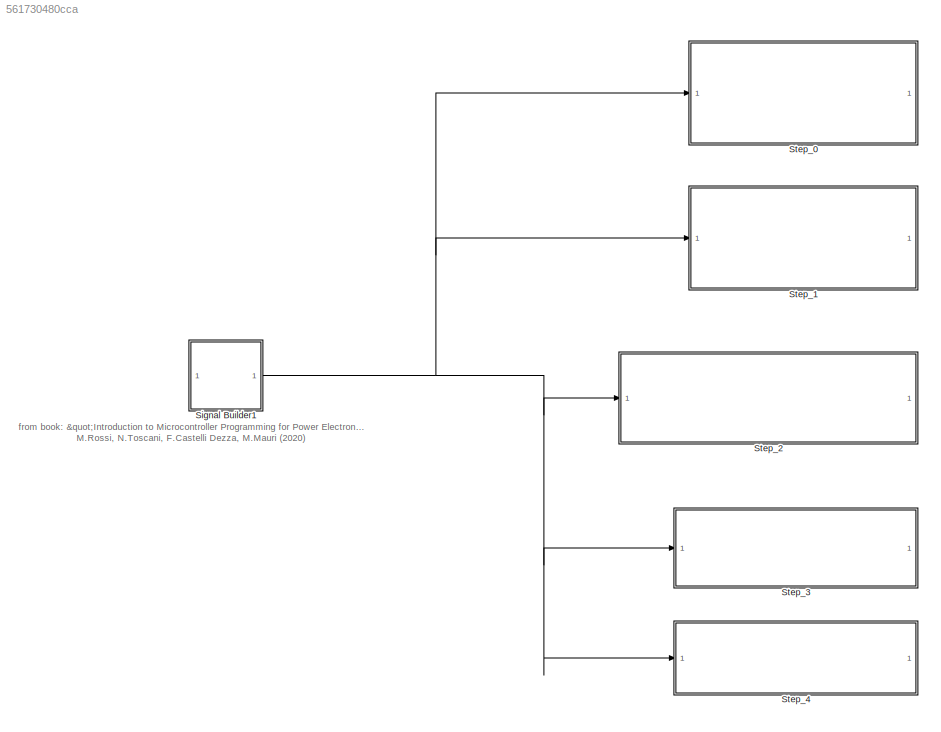
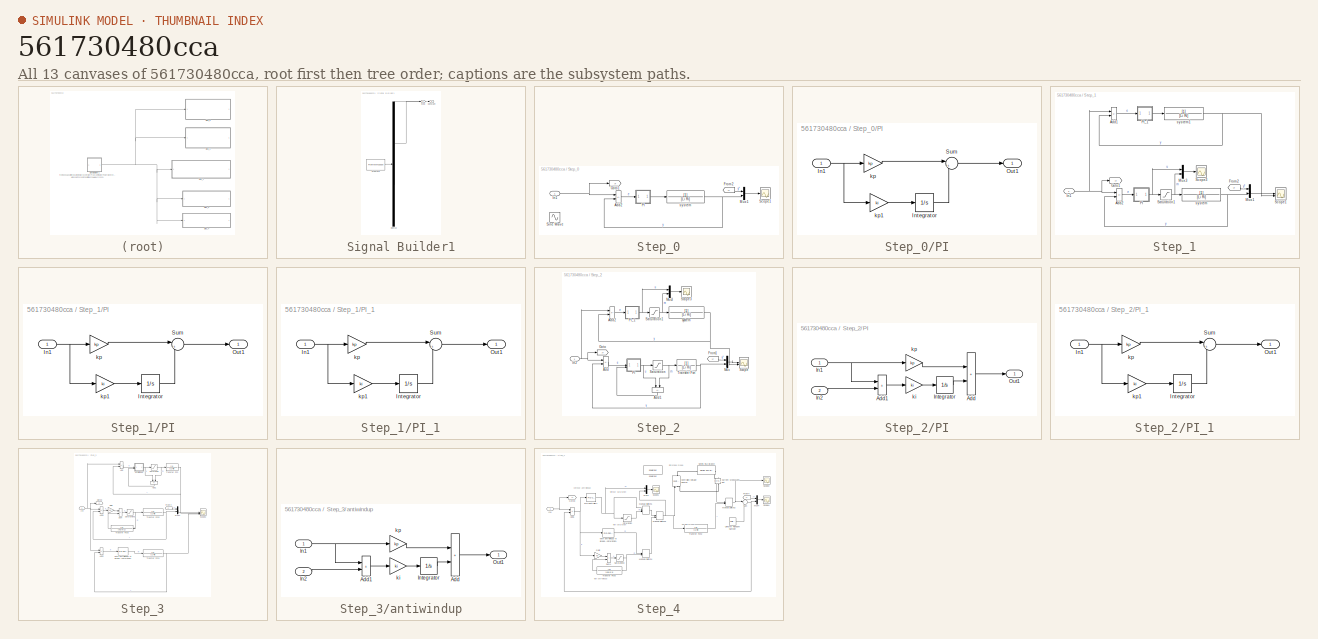
[diagram: thumbnail index - all 13 canvases of the model, root first then tree order]
MODEL slx_561730480cca
KIND model
CONFIG AbsTol = auto
CONFIG EnableMultiTasking = off
CONFIG FixedStep = auto
CONFIG MaxStep = auto
CONFIG MinStep = auto
CONFIG RelTol = 1e-3
CONFIG SampleTimeConstraint = Unconstrained
CONFIG SolverName = ode23tb
CONFIG StartTime = 0.0
CONFIG StopTime = 10
BLOCK [SubSystem] Signal Builder1
  ClipboardFcn = sigbuilder_block('clipboard');
  CloseFcn = sigbuilder_block('close');
  ContinueFcn = sigbuilder_block('continue');
  CopyFcn = sigbuilder_block('copy');
  DeleteFcn = sigbuilder_block('delete');
  LoadFcn = sigbuilder_block('load');
  MaskHideContents = on
  ModelCloseFcn = sigbuilder_block('modelClose');
  NameChangeFcn = sigbuilder_block('namechange');
  OpenFcn = sigbuilder_block('open',[5.4 5.4 1141.2 580.8 ]);
  PauseFcn = sigbuilder_block('pause');
  PreSaveFcn = sigbuilder_block('preSave');
  StartFcn = sigbuilder_block('start');
  StopFcn = sigbuilder_block('stop');
  Tag = STV Subsys
BLOCK [Outport] Signal Builder1/Constant
  Port = 2
  Tag = STV Outport
BLOCK [Demux] Signal Builder1/Demux
  DisplayOption = none
  Outputs = 2
  Tag = STV Demux
BLOCK [FromWorkspace] Signal Builder1/FromWs
  Tag = STV FromWs
  VariableName = tuvar
BLOCK [Outport] Signal Builder1/Step
  Tag = STV Outport
BLOCK [SubSystem] Step_0
BLOCK [Sum] Step_0/Add2
  IconShape = rectangular
  Inputs = +-
BLOCK [From] Step_0/From2
  GotoTag = yr
BLOCK [Goto] Step_0/Goto1
  GotoTag = yr
BLOCK [Inport] Step_0/In1
BLOCK [Mux] Step_0/Mux1
  DisplayOption = bar
  Inputs = 2
BLOCK [SubSystem] Step_0/PI
  NameLocation = top
BLOCK [Inport] Step_0/PI/In1
BLOCK [Integrator] Step_0/PI/Integrator
BLOCK [Outport] Step_0/PI/Out1
  VectorParamsAs1DForOutWhenUnconnected = off
BLOCK [Sum] Step_0/PI/Sum
  Inputs = |++
BLOCK [Gain] Step_0/PI/kp
  Gain = kp
BLOCK [Gain] Step_0/PI/kp1
  Gain = ki
BLOCK [Scope] Step_0/Scope1
  Floating = off
  NumInputPorts = 1
  ScopeSpecificationString = Simulink.scopes.TimeScopeBlockCfg('CurrentConfiguration', extmgr.ConfigurationSet(extmgr.Configuration('Core','General UI',true),extmgr.Configuration('Core','Source UI',true),extmgr.Configuration('Sources','WiredSimulink',true,'DataLoggingVariableName','ScopeData1'),extmgr.Configuration('Visuals','Time Domain',true,'SerializedDisplays',{struct('MinYLimReal','-0.125','MaxYLimReal','1.125','YLabelRe...<+1450ch>
BLOCK [Sin] Step_0/Sine Wave
  SampleTime = 0
BLOCK [TransferFcn] Step_0/system
  Denominator = [Li Ri]
  NameLocation = top
BLOCK [SubSystem] Step_1
BLOCK [Sum] Step_1/Add1
  IconShape = rectangular
  Inputs = +-
BLOCK [Sum] Step_1/Add2
  IconShape = rectangular
  Inputs = +-
BLOCK [From] Step_1/From2
  GotoTag = yr
BLOCK [Goto] Step_1/Goto1
  GotoTag = yr
BLOCK [Inport] Step_1/In1
BLOCK [Mux] Step_1/Mux1
  DisplayOption = bar
  Inputs = 2
BLOCK [Mux] Step_1/Mux3
  DisplayOption = bar
  Inputs = 2
BLOCK [SubSystem] Step_1/PI
  NameLocation = top
BLOCK [Inport] Step_1/PI/In1
BLOCK [Integrator] Step_1/PI/Integrator
BLOCK [Outport] Step_1/PI/Out1
  VectorParamsAs1DForOutWhenUnconnected = off
BLOCK [Sum] Step_1/PI/Sum
  Inputs = |++
BLOCK [Gain] Step_1/PI/kp
  Gain = kp
BLOCK [Gain] Step_1/PI/kp1
  Gain = ki
BLOCK [SubSystem] Step_1/PI_1
  NameLocation = top
BLOCK [Inport] Step_1/PI_1/In1
BLOCK [Integrator] Step_1/PI_1/Integrator
BLOCK [Outport] Step_1/PI_1/Out1
  VectorParamsAs1DForOutWhenUnconnected = off
BLOCK [Sum] Step_1/PI_1/Sum
  Inputs = |++
BLOCK [Gain] Step_1/PI_1/kp
  Gain = kp
BLOCK [Gain] Step_1/PI_1/kp1
  Gain = ki
BLOCK [Saturate] Step_1/Saturation1
  LowerLimit = -sat
  NameLocation = top
  UpperLimit = sat
BLOCK [Scope] Step_1/Scope1
  Floating = off
  NumInputPorts = 2
  ScopeSpecificationString = Simulink.scopes.TimeScopeBlockCfg('CurrentConfiguration', extmgr.ConfigurationSet(extmgr.Configuration('Core','General UI',true),extmgr.Configuration('Core','Source UI',true),extmgr.Configuration('Sources','WiredSimulink',true,'DataLoggingVariableName','ScopeData1'),extmgr.Configuration('Visuals','Time Domain',true,'SerializedDisplays',{struct('MinYLimReal','-0.12676','MaxYLimReal','1.13057','YLab...<+1467ch>
BLOCK [Scope] Step_1/Scope3
  Floating = off
  NumInputPorts = 1
  ScopeSpecificationString = Simulink.scopes.TimeScopeBlockCfg('CurrentConfiguration', extmgr.ConfigurationSet(extmgr.Configuration('Core','General UI',true),extmgr.Configuration('Core','Source UI',true),extmgr.Configuration('Sources','WiredSimulink',true,'DataLoggingVariableName','ScopeData3'),extmgr.Configuration('Visuals','Time Domain',true,'SerializedDisplays',{struct('MinYLimReal','-0.59687','MaxYLimReal','0.62187','YLab...<+1461ch>
BLOCK [TransferFcn] Step_1/system
  Denominator = [Li Ri]
  NameLocation = top
BLOCK [TransferFcn] Step_1/system1
  Denominator = [Li Ri]
  NameLocation = top
BLOCK [SubSystem] Step_2
BLOCK [Sum] Step_2/Add
  IconShape = rectangular
  Inputs = +-
BLOCK [Sum] Step_2/Add1
  IconShape = rectangular
  Inputs = -+
  NameLocation = left
BLOCK [Sum] Step_2/Add2
  IconShape = rectangular
  Inputs = +-
BLOCK [From] Step_2/From1
  GotoTag = yr
BLOCK [Goto] Step_2/Goto
  GotoTag = yr
BLOCK [Inport] Step_2/In2
BLOCK [Mux] Step_2/Mux
  DisplayOption = bar
  Inputs = 2
BLOCK [Mux] Step_2/Mux3
  DisplayOption = bar
  Inputs = 2
BLOCK [SubSystem] Step_2/PI
BLOCK [Sum] Step_2/PI/Add
  IconShape = rectangular
BLOCK [Sum] Step_2/PI/Add1
  IconShape = rectangular
BLOCK [Inport] Step_2/PI/In1
BLOCK [Inport] Step_2/PI/In2
  Port = 2
BLOCK [Integrator] Step_2/PI/Integrator
BLOCK [Outport] Step_2/PI/Out1
  VectorParamsAs1DForOutWhenUnconnected = off
BLOCK [Gain] Step_2/PI/ki
  Gain = ki
BLOCK [Gain] Step_2/PI/kp
  Gain = kp
BLOCK [SubSystem] Step_2/PI_1
  NameLocation = top
BLOCK [Inport] Step_2/PI_1/In1
BLOCK [Integrator] Step_2/PI_1/Integrator
BLOCK [Outport] Step_2/PI_1/Out1
  VectorParamsAs1DForOutWhenUnconnected = off
BLOCK [Sum] Step_2/PI_1/Sum
  Inputs = |++
BLOCK [Gain] Step_2/PI_1/kp
  Gain = kp
BLOCK [Gain] Step_2/PI_1/kp1
  Gain = ki
BLOCK [Saturate] Step_2/Saturation
  LowerLimit = -sat
  UpperLimit = sat
BLOCK [Saturate] Step_2/Saturation1
  LowerLimit = -sat
  NameLocation = top
  UpperLimit = sat
BLOCK [Scope] Step_2/Scope
  Floating = off
  NumInputPorts = 2
  ScopeSpecificationString = Simulink.scopes.TimeScopeBlockCfg('CurrentConfiguration', extmgr.ConfigurationSet(extmgr.Configuration('Core','General UI',true),extmgr.Configuration('Core','Source UI',true),extmgr.Configuration('Sources','WiredSimulink',true),extmgr.Configuration('Visuals','Time Domain',true,'SerializedDisplays',{struct('MinYLimReal','-0.12676','MaxYLimReal','1.13057','YLabelReal','','MinYLimMag','0.00000','MaxY...<+1495ch>
BLOCK [Scope] Step_2/Scope3
  Floating = off
  NumInputPorts = 1
  ScopeSpecificationString = Simulink.scopes.TimeScopeBlockCfg('CurrentConfiguration', extmgr.ConfigurationSet(extmgr.Configuration('Core','General UI',true),extmgr.Configuration('Core','Source UI',true),extmgr.Configuration('Sources','WiredSimulink',true,'DataLoggingVariableName','ScopeData3'),extmgr.Configuration('Visuals','Time Domain',true,'SerializedDisplays',{struct('MinYLimReal','-0.59687','MaxYLimReal','0.62187','YLab...<+1433ch>
BLOCK [TransferFcn] Step_2/Transfer Fcn
  Denominator = [Li Ri]
BLOCK [TransferFcn] Step_2/system
  Denominator = [Li Ri]
  NameLocation = top
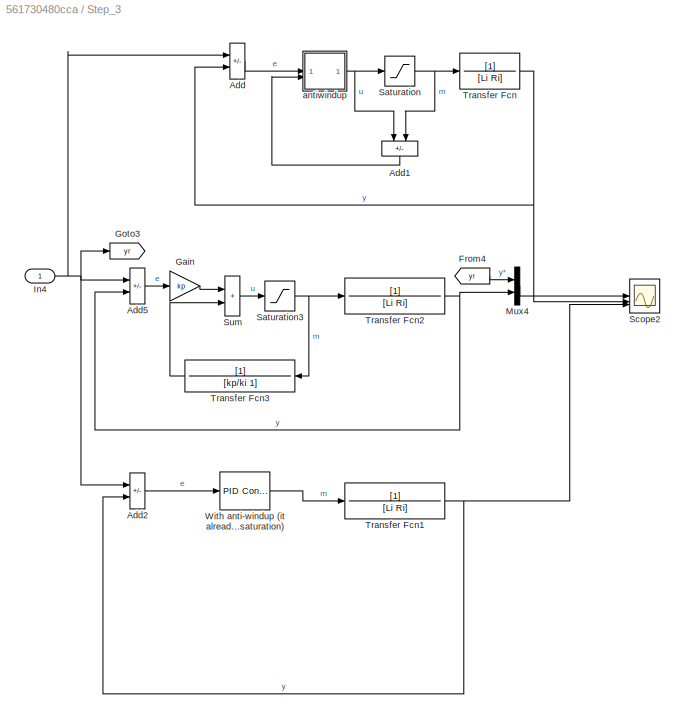
BLOCK [SubSystem] Step_3
BLOCK [Sum] Step_3/Add
  IconShape = rectangular
  Inputs = +-
BLOCK [Sum] Step_3/Add1
  IconShape = rectangular
  Inputs = -+
  NameLocation = left
BLOCK [Sum] Step_3/Add2
  IconShape = rectangular
  Inputs = +-
BLOCK [Sum] Step_3/Add5
  IconShape = rectangular
  Inputs = +-
BLOCK [From] Step_3/From4
  GotoTag = yr
BLOCK [Gain] Step_3/Gain
  Gain = kp
BLOCK [Goto] Step_3/Goto3
  GotoTag = yr
BLOCK [Inport] Step_3/In4
BLOCK [Mux] Step_3/Mux4
  DisplayOption = bar
  Inputs = 2
BLOCK [Saturate] Step_3/Saturation
  LowerLimit = -sat
  UpperLimit = sat
BLOCK [Saturate] Step_3/Saturation3
  LowerLimit = -sat
  UpperLimit = sat
BLOCK [Scope] Step_3/Scope2
  Floating = off
  NumInputPorts = 3
  ScopeSpecificationString = Simulink.scopes.TimeScopeBlockCfg('CurrentConfiguration', extmgr.ConfigurationSet(extmgr.Configuration('Core','General UI',true),extmgr.Configuration('Core','Source UI',true),extmgr.Configuration('Sources','WiredSimulink',true,'DataLoggingVariableName','ScopeData2'),extmgr.Configuration('Visuals','Time Domain',true,'SerializedDisplays',{struct('MinYLimReal','0.98731','MaxYLimReal','1.02552','YLabe...<+1586ch>
BLOCK [Sum] Step_3/Sum
  IconShape = rectangular
BLOCK [TransferFcn] Step_3/Transfer Fcn
  Denominator = [Li Ri]
BLOCK [TransferFcn] Step_3/Transfer Fcn1
  Denominator = [Li Ri]
BLOCK [TransferFcn] Step_3/Transfer Fcn2
  Denominator = [Li Ri]
BLOCK [TransferFcn] Step_3/Transfer Fcn3
  Denominator = [kp/ki 1]
  NameLocation = top
BLOCK [Reference] Step_3/With anti-windup (it already considers saturation)  REF=slpidlib/PID Controller
  LibrarySourceBlock = simulink/Continuous/PID Controller
  SourceBlock = slpidlib/PID Controller
  SourceType = PID 1dof
BLOCK [SubSystem] Step_3/antiwindup
BLOCK [Sum] Step_3/antiwindup/Add
  IconShape = rectangular
BLOCK [Sum] Step_3/antiwindup/Add1
  IconShape = rectangular
BLOCK [Inport] Step_3/antiwindup/In1
BLOCK [Inport] Step_3/antiwindup/In2
  Port = 2
BLOCK [Integrator] Step_3/antiwindup/Integrator
BLOCK [Outport] Step_3/antiwindup/Out1
  VectorParamsAs1DForOutWhenUnconnected = off
BLOCK [Gain] Step_3/antiwindup/ki
  Gain = ki
BLOCK [Gain] Step_3/antiwindup/kp
  Gain = kp
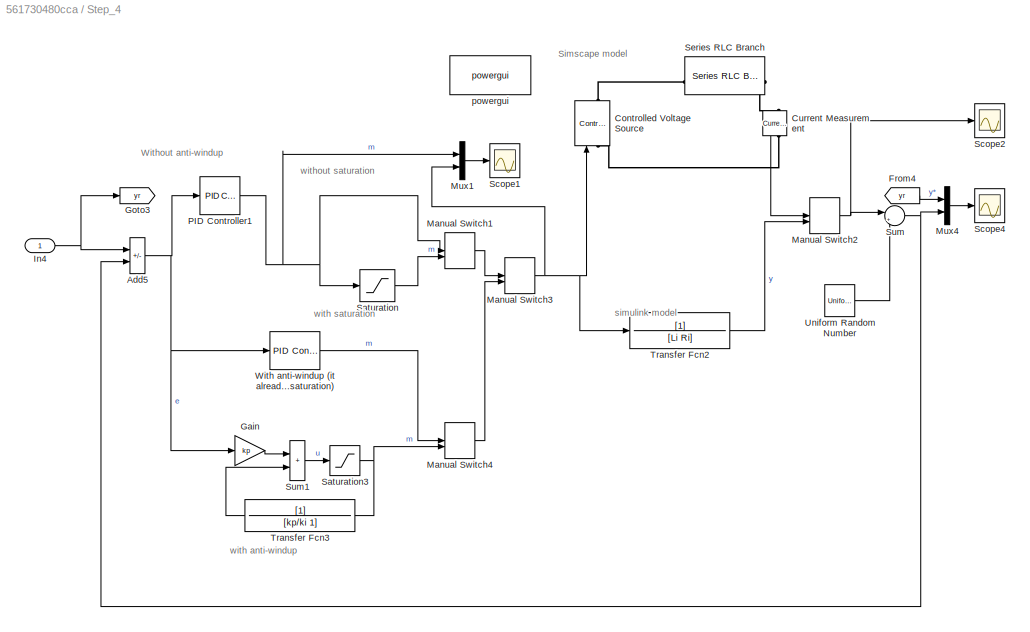
BLOCK [SubSystem] Step_4
BLOCK [Sum] Step_4/Add5
  IconShape = rectangular
  Inputs = +-
BLOCK [Reference] Step_4/Controlled Voltage Source  REF=spsControlledVoltageSourceLib/Controlled Voltage Source
  LibrarySourceBlock = sps_lib/Sources/Controlled Voltage Source
  SourceBlock = spsControlledVoltageSourceLib/Controlled Voltage Source
  SourceType = Controlled Voltage Source
BLOCK [Reference] Step_4/Current Measurement  REF=spsCurrentMeasurementLib/Current Measurement
  LibrarySourceBlock = sps_lib/Sensors and Measurements/Current Measurement
  NameLocation = left
  SourceBlock = spsCurrentMeasurementLib/Current Measurement
  SourceType = Current Measurement
  UserDataPersistent = on
BLOCK [From] Step_4/From4
  GotoTag = yr
BLOCK [Gain] Step_4/Gain
  Gain = kp
BLOCK [Goto] Step_4/Goto3
  GotoTag = yr
BLOCK [Inport] Step_4/In4
BLOCK [ManualSwitch] Step_4/Manual Switch1
BLOCK [ManualSwitch] Step_4/Manual Switch2
BLOCK [ManualSwitch] Step_4/Manual Switch3
  CurrentSetting = 0
BLOCK [ManualSwitch] Step_4/Manual Switch4
BLOCK [Mux] Step_4/Mux1
  DisplayOption = bar
  Inputs = 2
BLOCK [Mux] Step_4/Mux4
  DisplayOption = bar
  Inputs = 2
BLOCK [Reference] Step_4/PID Controller1  REF=slpidlib/PID Controller
  LibrarySourceBlock = simulink/Continuous/PID Controller
  SourceBlock = slpidlib/PID Controller
  SourceType = PID 1dof
BLOCK [Saturate] Step_4/Saturation
  LowerLimit = -sat
  UpperLimit = sat
BLOCK [Saturate] Step_4/Saturation3
  LowerLimit = -sat
  UpperLimit = sat
BLOCK [Scope] Step_4/Scope1
  Floating = off
  NumInputPorts = 1
  ScopeSpecificationString = Simulink.scopes.TimeScopeBlockCfg('CurrentConfiguration', extmgr.ConfigurationSet(extmgr.Configuration('Core','General UI',true),extmgr.Configuration('Core','Source UI',true),extmgr.Configuration('Sources','WiredSimulink',true,'DataLoggingVariableName','ScopeData1'),extmgr.Configuration('Visuals','Time Domain',true,'SerializedDisplays',{struct('MinYLimReal','-1.17783','MaxYLimReal','0.60051','YLab...<+1474ch>
BLOCK [Scope] Step_4/Scope2
  Floating = off
  NumInputPorts = 1
  ScopeSpecificationString = Simulink.scopes.TimeScopeBlockCfg('CurrentConfiguration', extmgr.ConfigurationSet(extmgr.Configuration('Core','General UI',true,'FigureColor',[1 1 1]),extmgr.Configuration('Core','Source UI',true),extmgr.Configuration('Sources','WiredSimulink',true,'DataLoggingVariableName','ScopeData1'),extmgr.Configuration('Visuals','Time Domain',true,'SerializedDisplays',{struct('MinYLimReal','-0.125','MaxYLimR...<+1657ch>
BLOCK [Scope] Step_4/Scope4
  Floating = off
  NumInputPorts = 1
  ScopeSpecificationString = Simulink.scopes.TimeScopeBlockCfg('CurrentConfiguration', extmgr.ConfigurationSet(extmgr.Configuration('Core','General UI',true,'FigureColor',[1 1 1]),extmgr.Configuration('Core','Source UI',true),extmgr.Configuration('Sources','WiredSimulink',true,'DataLoggingVariableName','ScopeData4'),extmgr.Configuration('Visuals','Time Domain',true,'SerializedDisplays',{struct('MinYLimReal','-0.125','MaxYLimR...<+1657ch>
BLOCK [Reference] Step_4/Series RLC Branch  REF=spsSeriesRLCBranchLib/Series RLC Branch
  LibrarySourceBlock = sps_lib/Passives/Series RLC Branch
  SourceBlock = spsSeriesRLCBranchLib/Series RLC Branch
  SourceType = Series RLC Branch
BLOCK [Sum] Step_4/Sum
  Inputs = |++
BLOCK [Sum] Step_4/Sum1
  IconShape = rectangular
BLOCK [TransferFcn] Step_4/Transfer Fcn2
  Denominator = [Li Ri]
BLOCK [TransferFcn] Step_4/Transfer Fcn3
  Denominator = [kp/ki 1]
  NameLocation = top
BLOCK [UniformRandomNumber] Step_4/Uniform Random Number
  Maximum = 0.05
  Minimum = -0.05
  SampleTime = 0.1
BLOCK [Reference] Step_4/With anti-windup (it already considers saturation)  REF=slpidlib/PID Controller
  LibrarySourceBlock = simulink/Continuous/PID Controller
  SourceBlock = slpidlib/PID Controller
  SourceType = PID 1dof
BLOCK [Reference] Step_4/powergui  REF=sps_lib/powergui
  Priority = 1
  SourceBlock = sps_lib/powergui
  SourceType = PSB option menu block
ANNOTATION (root): from book: "Introduction to Microcontroller Programming for Power Electronics Control Applications" M.Rossi, N.Toscani, F.Castelli Dezza, M.Mauri (2020)
ANNOTATION Step_4: Simscape model
ANNOTATION Step_4: Without anti-windup
ANNOTATION Step_4: simulink model
ANNOTATION Step_4: with anti-windup
ANNOTATION Step_4: with saturation
ANNOTATION Step_4: without saturation
NET Signal Builder1:1 -> Step_0:1, Step_1:1, Step_2:1, Step_3:1, Step_4:1
LINE Step_0/Add2:1 -> Step_0/PI:1
LINE Step_0/From2:1 -> Step_0/Mux1:1
NET Step_0/In1:1 -> Step_0/Add2:1, Step_0/Goto1:1
LINE Step_0/Mux1:1 -> Step_0/Scope1:1
NET Step_0/PI/In1:1 -> Step_0/PI/kp1:1, Step_0/PI/kp:1
LINE Step_0/PI/Integrator:1 -> Step_0/PI/Sum:2
LINE Step_0/PI/Sum:1 -> Step_0/PI/Out1:1
LINE Step_0/PI/kp1:1 -> Step_0/PI/Integrator:1
LINE Step_0/PI/kp:1 -> Step_0/PI/Sum:1
LINE Step_0/PI:1 -> Step_0/system:1
NET Step_0/system:1 -> Step_0/Add2:2, Step_0/Mux1:2
LINE Step_1/Add1:1 -> Step_1/PI_1:1
LINE Step_1/Add2:1 -> Step_1/PI:1
LINE Step_1/From2:1 -> Step_1/Mux1:1
NET Step_1/In1:1 -> Step_1/Add1:1, Step_1/Add2:1, Step_1/Goto1:1
LINE Step_1/Mux1:1 -> Step_1/Scope1:1
LINE Step_1/Mux3:1 -> Step_1/Scope3:1
NET Step_1/PI/In1:1 -> Step_1/PI/kp1:1, Step_1/PI/kp:1
LINE Step_1/PI/Integrator:1 -> Step_1/PI/Sum:2
LINE Step_1/PI/Sum:1 -> Step_1/PI/Out1:1
LINE Step_1/PI/kp1:1 -> Step_1/PI/Integrator:1
LINE Step_1/PI/kp:1 -> Step_1/PI/Sum:1
NET Step_1/PI:1 -> Step_1/Mux3:1, Step_1/Saturation1:1
NET Step_1/PI_1/In1:1 -> Step_1/PI_1/kp1:1, Step_1/PI_1/kp:1
LINE Step_1/PI_1/Integrator:1 -> Step_1/PI_1/Sum:2
LINE Step_1/PI_1/Sum:1 -> Step_1/PI_1/Out1:1
LINE Step_1/PI_1/kp1:1 -> Step_1/PI_1/Integrator:1
LINE Step_1/PI_1/kp:1 -> Step_1/PI_1/Sum:1
LINE Step_1/PI_1:1 -> Step_1/system1:1
NET Step_1/Saturation1:1 -> Step_1/Mux3:2, Step_1/system:1
NET Step_1/system1:1 -> Step_1/Add1:2, Step_1/Scope1:2
NET Step_1/system:1 -> Step_1/Add2:2, Step_1/Mux1:2
LINE Step_2/Add1:1 -> Step_2/PI:2
LINE Step_2/Add2:1 -> Step_2/PI_1:1
LINE Step_2/Add:1 -> Step_2/PI:1
LINE Step_2/From1:1 -> Step_2/Mux:1
NET Step_2/In2:1 -> Step_2/Add2:1, Step_2/Add:1, Step_2/Goto:1
LINE Step_2/Mux3:1 -> Step_2/Scope3:1
LINE Step_2/Mux:1 -> Step_2/Scope:1
LINE Step_2/PI/Add1:1 -> Step_2/PI/ki:1
LINE Step_2/PI/Add:1 -> Step_2/PI/Out1:1
NET Step_2/PI/In1:1 -> Step_2/PI/Add1:1, Step_2/PI/kp:1
LINE Step_2/PI/In2:1 -> Step_2/PI/Add1:2
LINE Step_2/PI/Integrator:1 -> Step_2/PI/Add:2
LINE Step_2/PI/ki:1 -> Step_2/PI/Integrator:1
LINE Step_2/PI/kp:1 -> Step_2/PI/Add:1
NET Step_2/PI:1 -> Step_2/Add1:1, Step_2/Saturation:1
NET Step_2/PI_1/In1:1 -> Step_2/PI_1/kp1:1, Step_2/PI_1/kp:1
LINE Step_2/PI_1/Integrator:1 -> Step_2/PI_1/Sum:2
LINE Step_2/PI_1/Sum:1 -> Step_2/PI_1/Out1:1
LINE Step_2/PI_1/kp1:1 -> Step_2/PI_1/Integrator:1
LINE Step_2/PI_1/kp:1 -> Step_2/PI_1/Sum:1
NET Step_2/PI_1:1 -> Step_2/Mux3:1, Step_2/Saturation1:1
NET Step_2/Saturation1:1 -> Step_2/Mux3:2, Step_2/system:1
NET Step_2/Saturation:1 -> Step_2/Add1:2, Step_2/Transfer Fcn:1
NET Step_2/Transfer Fcn:1 -> Step_2/Add:2, Step_2/Mux:2
NET Step_2/system:1 -> Step_2/Add2:2, Step_2/Scope:2
LINE Step_3/Add1:1 -> Step_3/antiwindup:2
LINE Step_3/Add2:1 -> Step_3/With anti-windup (it already considers saturation):1
LINE Step_3/Add5:1 -> Step_3/Gain:1
LINE Step_3/Add:1 -> Step_3/antiwindup:1
LINE Step_3/From4:1 -> Step_3/Mux4:1
LINE Step_3/Gain:1 -> Step_3/Sum:1
NET Step_3/In4:1 -> Step_3/Add2:1, Step_3/Add5:1, Step_3/Add:1, Step_3/Goto3:1
LINE Step_3/Mux4:1 -> Step_3/Scope2:1
NET Step_3/Saturation3:1 -> Step_3/Transfer Fcn2:1, Step_3/Transfer Fcn3:1
NET Step_3/Saturation:1 -> Step_3/Add1:2, Step_3/Transfer Fcn:1
LINE Step_3/Sum:1 -> Step_3/Saturation3:1
NET Step_3/Transfer Fcn1:1 -> Step_3/Add2:2, Step_3/Scope2:3
NET Step_3/Transfer Fcn2:1 -> Step_3/Add5:2, Step_3/Mux4:2
LINE Step_3/Transfer Fcn3:1 -> Step_3/Sum:2
NET Step_3/Transfer Fcn:1 -> Step_3/Add:2, Step_3/Scope2:2
LINE Step_3/With anti-windup (it already considers saturation):1 -> Step_3/Transfer Fcn1:1
LINE Step_3/antiwindup/Add1:1 -> Step_3/antiwindup/ki:1
LINE Step_3/antiwindup/Add:1 -> Step_3/antiwindup/Out1:1
NET Step_3/antiwindup/In1:1 -> Step_3/antiwindup/Add1:1, Step_3/antiwindup/kp:1
LINE Step_3/antiwindup/In2:1 -> Step_3/antiwindup/Add1:2
LINE Step_3/antiwindup/Integrator:1 -> Step_3/antiwindup/Add:2
LINE Step_3/antiwindup/ki:1 -> Step_3/antiwindup/Integrator:1
LINE Step_3/antiwindup/kp:1 -> Step_3/antiwindup/Add:1
NET Step_3/antiwindup:1 -> Step_3/Add1:1, Step_3/Saturation:1
NET Step_4/Add5:1 -> Step_4/Gain:1, Step_4/PID Controller1:1, Step_4/With anti-windup (it already considers saturation):1
LINE Step_4/Current Measurement:1 -> Step_4/Manual Switch2:1
LINE Step_4/From4:1 -> Step_4/Mux4:1
LINE Step_4/Gain:1 -> Step_4/Sum1:1
NET Step_4/In4:1 -> Step_4/Add5:1, Step_4/Goto3:1
LINE Step_4/Manual Switch1:1 -> Step_4/Manual Switch3:1
NET Step_4/Manual Switch2:1 -> Step_4/Scope2:1, Step_4/Sum:1
NET Step_4/Manual Switch3:1 -> Step_4/Controlled Voltage Source:1, Step_4/Mux1:2, Step_4/Transfer Fcn2:1
LINE Step_4/Manual Switch4:1 -> Step_4/Manual Switch3:2
LINE Step_4/Mux1:1 -> Step_4/Scope1:1
LINE Step_4/Mux4:1 -> Step_4/Scope4:1
NET Step_4/PID Controller1:1 -> Step_4/Manual Switch1:1, Step_4/Mux1:1, Step_4/Saturation:1
NET Step_4/Saturation3:1 -> Step_4/Manual Switch4:2, Step_4/Transfer Fcn3:1
LINE Step_4/Saturation:1 -> Step_4/Manual Switch1:2
LINE Step_4/Sum1:1 -> Step_4/Saturation3:1
NET Step_4/Sum:1 -> Step_4/Add5:2, Step_4/Mux4:2
LINE Step_4/Transfer Fcn2:1 -> Step_4/Manual Switch2:2
LINE Step_4/Transfer Fcn3:1 -> Step_4/Sum1:2
LINE Step_4/Uniform Random Number:1 -> Step_4/Sum:2
LINE Step_4/With anti-windup (it already considers saturation):1 -> Step_4/Manual Switch4:1
PLINE Step_4/Controlled Voltage Source:LConn1 -- Step_4/Current Measurement:RConn1
PLINE Step_4/Controlled Voltage Source:RConn1 -- Step_4/Series RLC Branch:LConn1
PLINE Step_4/Current Measurement:LConn1 -- Step_4/Series RLC Branch:RConn1
note: NET lines group one-source signal fan-out (src -> all destinations, sorted); 1:1 wires keep LINE
